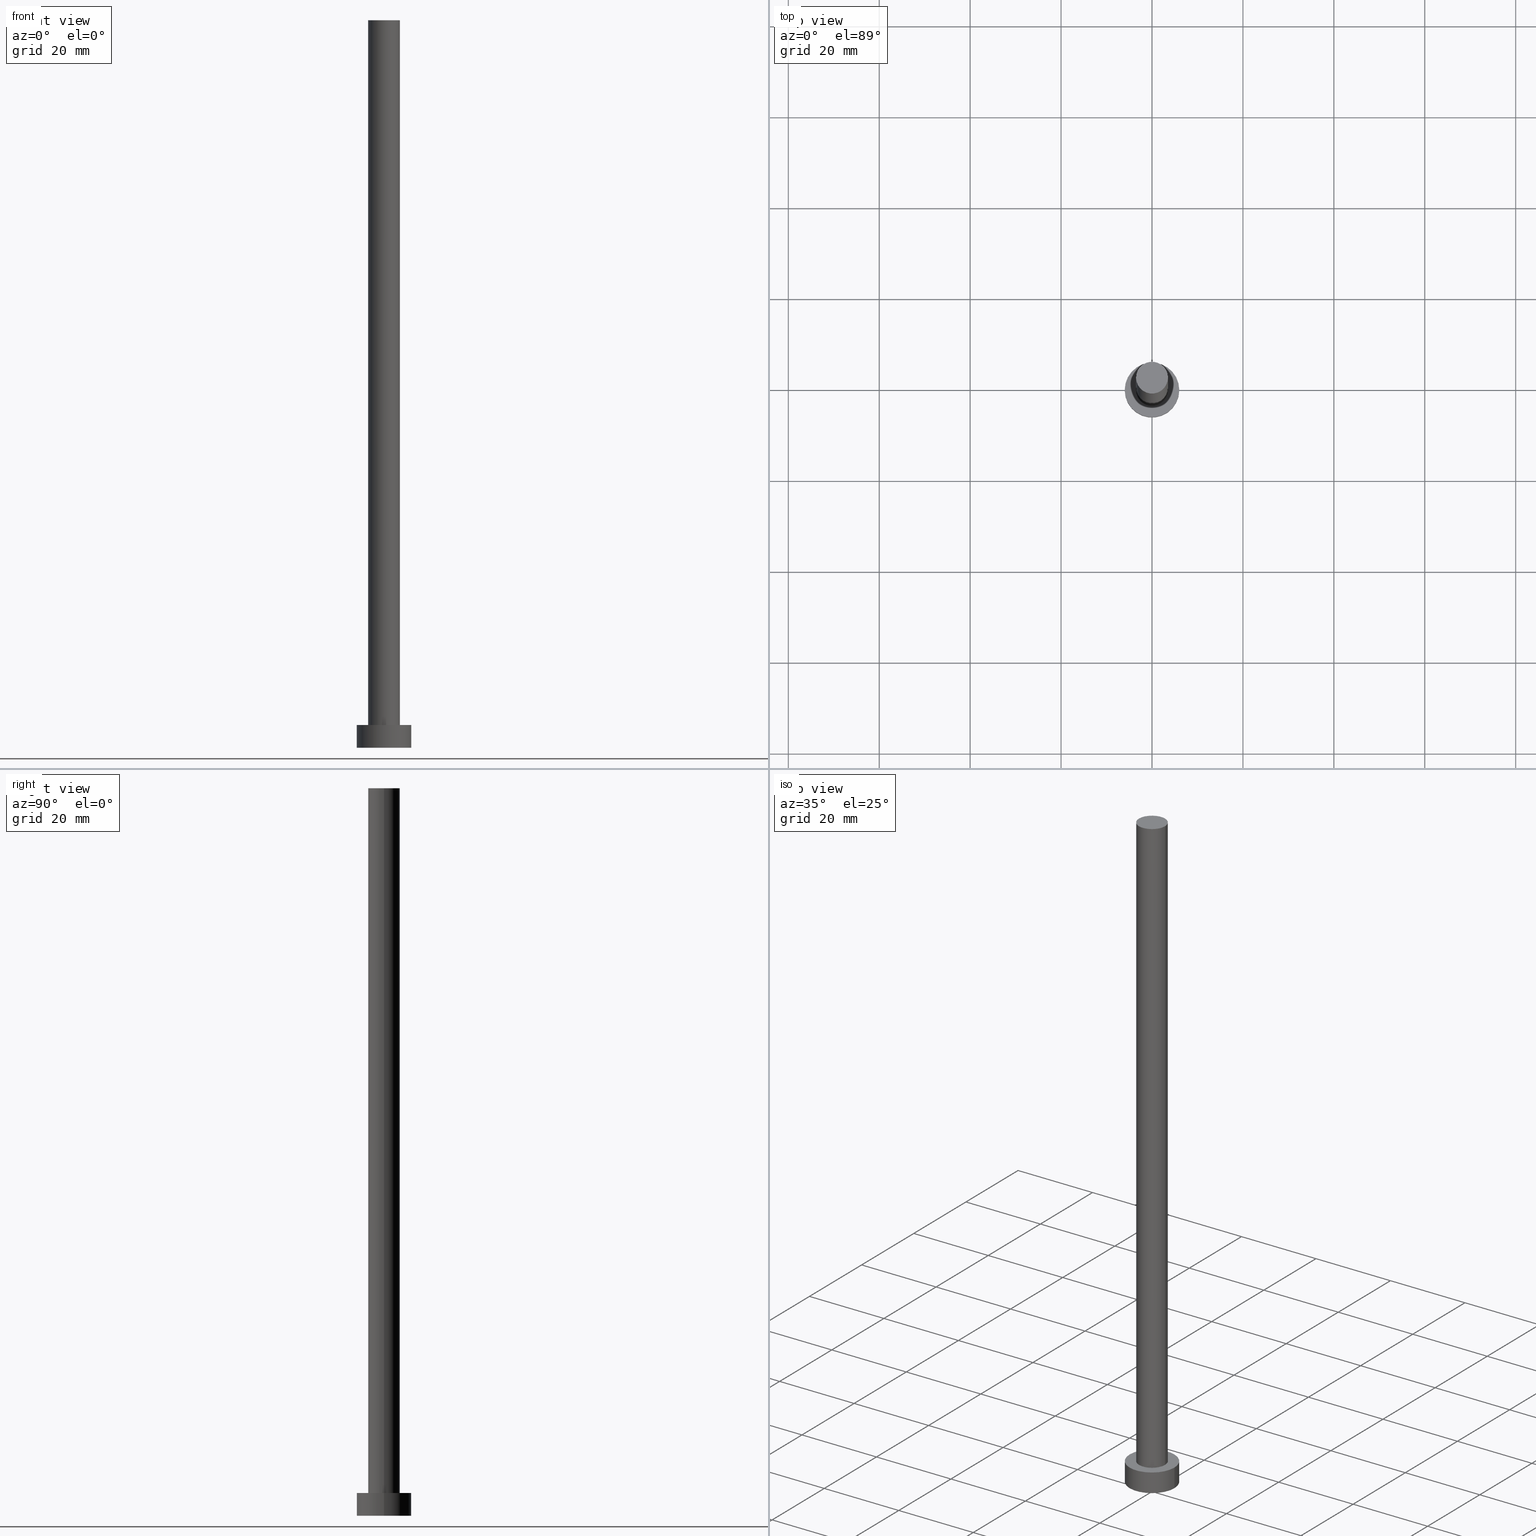
[diagram: canonical four-view strip — front | top / right | iso, engineering-drawing reading convention]
A machine part, canonical four-view strip (front | top / right | iso — engineering-drawing reading convention). The complete STEP part file that produces these views, byte-faithful:
ISO-10303-21;
HEADER;
FILE_DESCRIPTION (( 'STEP AP203' ),
    '1' );
FILE_NAME ('7220.STEP',
    '2023-02-13T11:46:51',
    ( '' ),
    ( '' ),
    'SwSTEP 2.0',
    'SolidWorks 2019',
    '' );
FILE_SCHEMA (( 'CONFIG_CONTROL_DESIGN' ));
ENDSEC;

DATA;
#1 = FACE_OUTER_BOUND ( 'NONE', #35, .T. ) ;
#2 = CARTESIAN_POINT ( 'NONE',  ( 0.000000000000000000, 0.000000000000000000, 5.000000000000000000 ) ) ;
#3 = EDGE_CURVE ( 'NONE', #219, #74, #107, .T. ) ;
#4 = LOCAL_TIME ( 12, 46, 51.00000000000000000, #26 ) ;
#5 = DATE_TIME_ROLE ( 'creation_date' ) ;
#6 = ORIENTED_EDGE ( 'NONE', *, *, #116, .F. ) ;
#7 = DATE_AND_TIME ( #112, #138 ) ;
#8 = DIRECTION ( 'NONE',  ( -1.000000000000000000, 0.000000000000000000, 0.000000000000000000 ) ) ;
#9 = VERTEX_POINT ( 'NONE', #247 ) ;
#10 = VECTOR ( 'NONE', #252, 1000.000000000000000 ) ;
#11 = ORIENTED_EDGE ( 'NONE', *, *, #98, .F. ) ;
#12 = ADVANCED_FACE ( 'NONE', ( #28 ), #75, .T. ) ;
#13 = CARTESIAN_POINT ( 'NONE',  ( -3.500000000000000000, 0.000000000000000000, 160.0000000000000000 ) ) ;
#14 = CC_DESIGN_APPROVAL ( #94, ( #190 ) ) ;
#15 = CC_DESIGN_PERSON_AND_ORGANIZATION_ASSIGNMENT ( #234, #241, ( #19 ) ) ;
#16 = DIRECTION ( 'NONE',  ( 0.000000000000000000, 0.000000000000000000, 1.000000000000000000 ) ) ;
#17 = AXIS2_PLACEMENT_3D ( 'NONE', #87, #164, #197 ) ;
#18 = AXIS2_PLACEMENT_3D ( 'NONE', #34, #97, #207 ) ;
#19 = SECURITY_CLASSIFICATION ( '', '', #202 ) ;
#20 = DIRECTION ( 'NONE',  ( 1.000000000000000000, 0.000000000000000000, -0.000000000000000000 ) ) ;
#21 = DIRECTION ( 'NONE',  ( 0.000000000000000000, 0.000000000000000000, 1.000000000000000000 ) ) ;
#22 = AXIS2_PLACEMENT_3D ( 'NONE', #2, #154, #225 ) ;
#23 = APPROVAL_PERSON_ORGANIZATION ( #216, #94, #115 ) ;
#24 = APPROVAL_DATE_TIME ( #165, #94 ) ;
#25 = DIRECTION ( 'NONE',  ( 1.000000000000000000, 0.000000000000000000, 0.000000000000000000 ) ) ;
#26 = COORDINATED_UNIVERSAL_TIME_OFFSET ( 1, 0, .AHEAD. ) ;
#27 = LOCAL_TIME ( 12, 46, 51.00000000000000000, #55 ) ;
#28 = FACE_OUTER_BOUND ( 'NONE', #92, .T. ) ;
#29 = PRODUCT_RELATED_PRODUCT_CATEGORY ( 'detail', '', ( #183 ) ) ;
#30 = PERSON_AND_ORGANIZATION ( #208, #47 ) ;
#31 = ORIENTED_EDGE ( 'NONE', *, *, #49, .F. ) ;
#32 = EDGE_LOOP ( 'NONE', ( #11, #69, #136, #131 ) ) ;
#33 = CLOSED_SHELL ( 'NONE', ( #215, #158, #12, #177, #253, #121, #84 ) ) ;
#34 = CARTESIAN_POINT ( 'NONE',  ( 0.000000000000000000, 0.000000000000000000, 5.000000000000000000 ) ) ;
#35 = EDGE_LOOP ( 'NONE', ( #111, #50, #67, #54 ) ) ;
#36 = PLANE ( 'NONE',  #255 ) ;
#37 = CARTESIAN_POINT ( 'NONE',  ( 0.000000000000000000, 0.000000000000000000, 5.000000000000000000 ) ) ;
#38 = CIRCLE ( 'NONE', #17, 6.000000000000000888 ) ;
#39 = LOCAL_TIME ( 12, 46, 51.00000000000000000, #179 ) ;
#40 =( LENGTH_UNIT ( ) NAMED_UNIT ( * ) SI_UNIT ( .MILLI., .METRE. ) );
#41 = APPLICATION_CONTEXT ( 'configuration controlled 3d designs of mechanical parts and assemblies' ) ;
#42 = CARTESIAN_POINT ( 'NONE',  ( 0.000000000000000000, 0.000000000000000000, 160.0000000000000000 ) ) ;
#43 = APPROVAL_PERSON_ORGANIZATION ( #198, #106, #130 ) ;
#44 = CARTESIAN_POINT ( 'NONE',  ( -3.500000000000000000, 0.000000000000000000, 160.0000000000000000 ) ) ;
#45 = EDGE_CURVE ( 'NONE', #137, #204, #38, .T. ) ;
#46 = COORDINATED_UNIVERSAL_TIME_OFFSET ( 1, 0, .AHEAD. ) ;
#47 = ORGANIZATION ( 'NEUR�EN�', 'NEUR�EN�', '' ) ;
#48 = CARTESIAN_POINT ( 'NONE',  ( 0.000000000000000000, 0.000000000000000000, 0.000000000000000000 ) ) ;
#49 = EDGE_CURVE ( 'NONE', #9, #148, #99, .T. ) ;
#50 = ORIENTED_EDGE ( 'NONE', *, *, #101, .T. ) ;
#51 = CIRCLE ( 'NONE', #83, 6.000000000000000888 ) ;
#52 = PERSON_AND_ORGANIZATION ( #208, #47 ) ;
#53 = CARTESIAN_POINT ( 'NONE',  ( 0.000000000000000000, 0.000000000000000000, 160.0000000000000000 ) ) ;
#54 = ORIENTED_EDGE ( 'NONE', *, *, #211, .F. ) ;
#55 = COORDINATED_UNIVERSAL_TIME_OFFSET ( 1, 0, .AHEAD. ) ;
#56 = APPROVAL_DATE_TIME ( #245, #76 ) ;
#57 = EDGE_LOOP ( 'NONE', ( #169, #114 ) ) ;
#58 = DIRECTION ( 'NONE',  ( 1.000000000000000000, 0.000000000000000000, 0.000000000000000000 ) ) ;
#59 = PLANE ( 'NONE',  #142 ) ;
#60 = CIRCLE ( 'NONE', #236, 3.500000000000000000 ) ;
#61 = CARTESIAN_POINT ( 'NONE',  ( 0.000000000000000000, 0.000000000000000000, 5.000000000000000000 ) ) ;
#62 = DIRECTION ( 'NONE',  ( 0.000000000000000000, 0.000000000000000000, 1.000000000000000000 ) ) ;
#63 = LINE ( 'NONE', #157, #192 ) ;
#64 = ADVANCED_BREP_SHAPE_REPRESENTATION ( '7220', ( #168, #144 ), #244 ) ;
#65 = CC_DESIGN_PERSON_AND_ORGANIZATION_ASSIGNMENT ( #205, #238, ( #190 ) ) ;
#66 = APPROVAL_STATUS ( 'not_yet_approved' ) ;
#67 = ORIENTED_EDGE ( 'NONE', *, *, #116, .T. ) ;
#68 = COORDINATED_UNIVERSAL_TIME_OFFSET ( 1, 0, .AHEAD. ) ;
#69 = ORIENTED_EDGE ( 'NONE', *, *, #3, .F. ) ;
#70 = FACE_OUTER_BOUND ( 'NONE', #32, .T. ) ;
#71 = DATE_TIME_ROLE ( 'classification_date' ) ;
#72 = CARTESIAN_POINT ( 'NONE',  ( 3.500000000000000000, 4.286263797015736595E-16, 5.000000000000000000 ) ) ;
#73 = AXIS2_PLACEMENT_3D ( 'NONE', #86, #113, #8 ) ;
#74 = VERTEX_POINT ( 'NONE', #180 ) ;
#75 = CYLINDRICAL_SURFACE ( 'NONE', #22, 6.000000000000000888 ) ;
#76 = APPROVAL ( #126, 'NEUR�EN�' ) ;
#77 = DIRECTION ( 'NONE',  ( 0.000000000000000000, 0.000000000000000000, 1.000000000000000000 ) ) ;
#78 = DIRECTION ( 'NONE',  ( 0.000000000000000000, 0.000000000000000000, 1.000000000000000000 ) ) ;
#79 = DIRECTION ( 'NONE',  ( 1.000000000000000000, 0.000000000000000000, -0.000000000000000000 ) ) ;
#80 = APPLICATION_PROTOCOL_DEFINITION ( 'international standard', 'config_control_design', 1994, #232 ) ;
#81 = CARTESIAN_POINT ( 'NONE',  ( 3.500000000000000000, 4.286263797015736595E-16, 160.0000000000000000 ) ) ;
#82 = DIRECTION ( 'NONE',  ( -0.000000000000000000, -0.000000000000000000, -1.000000000000000000 ) ) ;
#83 = AXIS2_PLACEMENT_3D ( 'NONE', #203, #246, #127 ) ;
#84 = ADVANCED_FACE ( 'NONE', ( #90 ), #59, .T. ) ;
#85 = PERSON_AND_ORGANIZATION_ROLE ( 'design_owner' ) ;
#86 = CARTESIAN_POINT ( 'NONE',  ( 0.000000000000000000, 0.000000000000000000, 5.000000000000000000 ) ) ;
#87 = CARTESIAN_POINT ( 'NONE',  ( 0.000000000000000000, 0.000000000000000000, 5.000000000000000000 ) ) ;
#88 = CC_DESIGN_APPROVAL ( #106, ( #125 ) ) ;
#89 = CARTESIAN_POINT ( 'NONE',  ( 6.000000000000000888, 7.347880794884120722E-16, 0.000000000000000000 ) ) ;
#90 = FACE_OUTER_BOUND ( 'NONE', #120, .T. ) ;
#91 = EDGE_CURVE ( 'NONE', #219, #243, #104, .T. ) ;
#92 = EDGE_LOOP ( 'NONE', ( #149, #134, #224, #95 ) ) ;
#93 = DIRECTION ( 'NONE',  ( -1.000000000000000000, 0.000000000000000000, 0.000000000000000000 ) ) ;
#94 = APPROVAL ( #66, 'NEUR�EN�' ) ;
#95 = ORIENTED_EDGE ( 'NONE', *, *, #49, .T. ) ;
#96 = CARTESIAN_POINT ( 'NONE',  ( -3.500000000000000000, 0.000000000000000000, 5.000000000000000000 ) ) ;
#97 = DIRECTION ( 'NONE',  ( 0.000000000000000000, 0.000000000000000000, 1.000000000000000000 ) ) ;
#98 = EDGE_CURVE ( 'NONE', #74, #170, #161, .T. ) ;
#99 = CIRCLE ( 'NONE', #163, 6.000000000000000888 ) ;
#100 = PLANE ( 'NONE',  #18 ) ;
#101 = EDGE_CURVE ( 'NONE', #137, #148, #105, .T. ) ;
#102 = AXIS2_PLACEMENT_3D ( 'NONE', #37, #78, #210 ) ;
#103 = MECHANICAL_CONTEXT ( 'NONE', #232, 'mechanical' ) ;
#104 = LINE ( 'NONE', #44, #10 ) ;
#105 = LINE ( 'NONE', #254, #174 ) ;
#106 = APPROVAL ( #233, 'NEUR�EN�' ) ;
#107 = CIRCLE ( 'NONE', #160, 3.500000000000000000 ) ;
#108 = AXIS2_PLACEMENT_3D ( 'NONE', #118, #188, #250 ) ;
#109 = APPROVAL_ROLE ( '' ) ;
#110 = CALENDAR_DATE ( 2023, 13, 2 ) ;
#111 = ORIENTED_EDGE ( 'NONE', *, *, #45, .F. ) ;
#112 = CALENDAR_DATE ( 2023, 13, 2 ) ;
#113 = DIRECTION ( 'NONE',  ( -0.000000000000000000, -0.000000000000000000, -1.000000000000000000 ) ) ;
#114 = ORIENTED_EDGE ( 'NONE', *, *, #45, .T. ) ;
#115 = APPROVAL_ROLE ( '' ) ;
#116 = EDGE_CURVE ( 'NONE', #148, #9, #249, .T. ) ;
#117 = EDGE_LOOP ( 'NONE', ( #186, #184 ) ) ;
#118 = CARTESIAN_POINT ( 'NONE',  ( 0.000000000000000000, 0.000000000000000000, 160.0000000000000000 ) ) ;
#119 = CIRCLE ( 'NONE', #102, 3.500000000000000000 ) ;
#120 = EDGE_LOOP ( 'NONE', ( #240, #153 ) ) ;
#121 = ADVANCED_FACE ( 'NONE', ( #70 ), #220, .T. ) ;
#122 = CC_DESIGN_DATE_AND_TIME_ASSIGNMENT ( #182, #5, ( #190 ) ) ;
#123 = DIRECTION ( 'NONE',  ( 0.000000000000000000, 0.000000000000000000, 1.000000000000000000 ) ) ;
#124 = CC_DESIGN_DATE_AND_TIME_ASSIGNMENT ( #7, #71, ( #19 ) ) ;
#125 = PRODUCT_DEFINITION_FORMATION_WITH_SPECIFIED_SOURCE ( 'LIBOVOLN�', '', #183, .NOT_KNOWN. ) ;
#126 = APPROVAL_STATUS ( 'not_yet_approved' ) ;
#127 = DIRECTION ( 'NONE',  ( 1.000000000000000000, 0.000000000000000000, 0.000000000000000000 ) ) ;
#128 = CARTESIAN_POINT ( 'NONE',  ( 6.000000000000000888, 7.347880794884120722E-16, 5.000000000000000000 ) ) ;
#129 = DIRECTION ( 'NONE',  ( 0.000000000000000000, 0.000000000000000000, 1.000000000000000000 ) ) ;
#130 = APPROVAL_ROLE ( '' ) ;
#131 = ORIENTED_EDGE ( 'NONE', *, *, #193, .T. ) ;
#132 = PERSON_AND_ORGANIZATION ( #208, #47 ) ;
#133 = DIRECTION ( 'NONE',  ( -0.000000000000000000, -0.000000000000000000, -1.000000000000000000 ) ) ;
#134 = ORIENTED_EDGE ( 'NONE', *, *, #145, .F. ) ;
#135 = PERSON_AND_ORGANIZATION_ROLE ( 'design_supplier' ) ;
#136 = ORIENTED_EDGE ( 'NONE', *, *, #91, .T. ) ;
#137 = VERTEX_POINT ( 'NONE', #128 ) ;
#138 = LOCAL_TIME ( 12, 46, 51.00000000000000000, #46 ) ;
#139 = DIRECTION ( 'NONE',  ( -0.000000000000000000, -0.000000000000000000, -1.000000000000000000 ) ) ;
#140 = FACE_OUTER_BOUND ( 'NONE', #235, .T. ) ;
#141 = CC_DESIGN_PERSON_AND_ORGANIZATION_ASSIGNMENT ( #132, #135, ( #125 ) ) ;
#142 = AXIS2_PLACEMENT_3D ( 'NONE', #42, #123, #20 ) ;
#143 =( NAMED_UNIT ( * ) PLANE_ANGLE_UNIT ( ) SI_UNIT ( $, .RADIAN. ) );
#144 = AXIS2_PLACEMENT_3D ( 'NONE', #146, #212, #251 ) ;
#145 = EDGE_CURVE ( 'NONE', #204, #137, #51, .T. ) ;
#146 = CARTESIAN_POINT ( 'NONE',  ( 0.000000000000000000, 0.000000000000000000, 0.000000000000000000 ) ) ;
#147 = PRODUCT_DEFINITION_SHAPE ( 'NONE', 'NONE',  #190 ) ;
#148 = VERTEX_POINT ( 'NONE', #89 ) ;
#149 = ORIENTED_EDGE ( 'NONE', *, *, #101, .F. ) ;
#150 = APPLICATION_PROTOCOL_DEFINITION ( 'international standard', 'config_control_design', 1994, #41 ) ;
#151 = ORIENTED_EDGE ( 'NONE', *, *, #98, .T. ) ;
#152 = DATE_AND_TIME ( #110, #4 ) ;
#153 = ORIENTED_EDGE ( 'NONE', *, *, #242, .T. ) ;
#154 = DIRECTION ( 'NONE',  ( -0.000000000000000000, -0.000000000000000000, -1.000000000000000000 ) ) ;
#155 = CC_DESIGN_PERSON_AND_ORGANIZATION_ASSIGNMENT ( #52, #223, ( #125 ) ) ;
#156 = FACE_BOUND ( 'NONE', #117, .T. ) ;
#157 = CARTESIAN_POINT ( 'NONE',  ( -6.000000000000000888, 0.000000000000000000, 5.000000000000000000 ) ) ;
#158 = ADVANCED_FACE ( 'NONE', ( #1 ), #196, .T. ) ;
#159 = AXIS2_PLACEMENT_3D ( 'NONE', #227, #62, #58 ) ;
#160 = AXIS2_PLACEMENT_3D ( 'NONE', #171, #200, #217 ) ;
#161 = LINE ( 'NONE', #81, #213 ) ;
#162 = PERSON_AND_ORGANIZATION ( #208, #47 ) ;
#163 = AXIS2_PLACEMENT_3D ( 'NONE', #48, #129, #25 ) ;
#164 = DIRECTION ( 'NONE',  ( 0.000000000000000000, 0.000000000000000000, 1.000000000000000000 ) ) ;
#165 = DATE_AND_TIME ( #185, #27 ) ;
#166 = EDGE_LOOP ( 'NONE', ( #31, #6 ) ) ;
#167 = CC_DESIGN_PERSON_AND_ORGANIZATION_ASSIGNMENT ( #30, #85, ( #183 ) ) ;
#168 = MANIFOLD_SOLID_BREP ( 'P�idat vysunut�m3', #33 ) ;
#169 = ORIENTED_EDGE ( 'NONE', *, *, #145, .T. ) ;
#170 = VERTEX_POINT ( 'NONE', #72 ) ;
#171 = CARTESIAN_POINT ( 'NONE',  ( 0.000000000000000000, 0.000000000000000000, 160.0000000000000000 ) ) ;
#172 = CARTESIAN_POINT ( 'NONE',  ( -6.000000000000000888, 0.000000000000000000, 5.000000000000000000 ) ) ;
#173 = FACE_OUTER_BOUND ( 'NONE', #166, .T. ) ;
#174 = VECTOR ( 'NONE', #82, 1000.000000000000000 ) ;
#175 = CALENDAR_DATE ( 2023, 13, 2 ) ;
#176 = CARTESIAN_POINT ( 'NONE',  ( 0.000000000000000000, 0.000000000000000000, 0.000000000000000000 ) ) ;
#177 = ADVANCED_FACE ( 'NONE', ( #156, #191 ), #100, .T. ) ;
#178 = DIRECTION ( 'NONE',  ( 1.000000000000000000, 0.000000000000000000, 0.000000000000000000 ) ) ;
#179 = COORDINATED_UNIVERSAL_TIME_OFFSET ( 1, 0, .AHEAD. ) ;
#180 = CARTESIAN_POINT ( 'NONE',  ( 3.500000000000000000, 4.286263797015736595E-16, 160.0000000000000000 ) ) ;
#181 = APPROVAL_DATE_TIME ( #152, #106 ) ;
#182 = DATE_AND_TIME ( #218, #214 ) ;
#183 = PRODUCT ( '7220', '7220', '', ( #103 ) ) ;
#184 = ORIENTED_EDGE ( 'NONE', *, *, #237, .F. ) ;
#185 = CALENDAR_DATE ( 2023, 13, 2 ) ;
#186 = ORIENTED_EDGE ( 'NONE', *, *, #193, .F. ) ;
#187 = SHAPE_DEFINITION_REPRESENTATION ( #147, #64 ) ;
#188 = DIRECTION ( 'NONE',  ( -0.000000000000000000, -0.000000000000000000, -1.000000000000000000 ) ) ;
#189 = AXIS2_PLACEMENT_3D ( 'NONE', #53, #133, #93 ) ;
#190 = PRODUCT_DEFINITION ( 'NEZN�M�', '', #125, #226 ) ;
#191 = FACE_OUTER_BOUND ( 'NONE', #57, .T. ) ;
#192 = VECTOR ( 'NONE', #139, 1000.000000000000000 ) ;
#193 = EDGE_CURVE ( 'NONE', #243, #170, #60, .T. ) ;
#194 = CARTESIAN_POINT ( 'NONE',  ( 0.000000000000000000, 0.000000000000000000, 0.000000000000000000 ) ) ;
#195 = CC_DESIGN_SECURITY_CLASSIFICATION ( #19, ( #125 ) ) ;
#196 = CYLINDRICAL_SURFACE ( 'NONE', #73, 6.000000000000000888 ) ;
#197 = DIRECTION ( 'NONE',  ( 1.000000000000000000, 0.000000000000000000, 0.000000000000000000 ) ) ;
#198 = PERSON_AND_ORGANIZATION ( #208, #47 ) ;
#199 = AXIS2_PLACEMENT_3D ( 'NONE', #194, #21, #178 ) ;
#200 = DIRECTION ( 'NONE',  ( 0.000000000000000000, 0.000000000000000000, 1.000000000000000000 ) ) ;
#201 = APPROVAL_PERSON_ORGANIZATION ( #162, #76, #109 ) ;
#202 = SECURITY_CLASSIFICATION_LEVEL ( 'unclassified' ) ;
#203 = CARTESIAN_POINT ( 'NONE',  ( 0.000000000000000000, 0.000000000000000000, 5.000000000000000000 ) ) ;
#204 = VERTEX_POINT ( 'NONE', #172 ) ;
#205 = PERSON_AND_ORGANIZATION ( #208, #47 ) ;
#206 = ORIENTED_EDGE ( 'NONE', *, *, #242, .F. ) ;
#207 = DIRECTION ( 'NONE',  ( 1.000000000000000000, 0.000000000000000000, -0.000000000000000000 ) ) ;
#208 = PERSON ( 'NEUR�EN�', 'NEUR�EN�', 'NEUR�EN�', ('NEUR�EN�'), ('NEUR�EN�'), ('NEUR�EN�') ) ;
#209 = CYLINDRICAL_SURFACE ( 'NONE', #108, 3.500000000000000000 ) ;
#210 = DIRECTION ( 'NONE',  ( 1.000000000000000000, 0.000000000000000000, 0.000000000000000000 ) ) ;
#211 = EDGE_CURVE ( 'NONE', #204, #9, #63, .T. ) ;
#212 = DIRECTION ( 'NONE',  ( 0.000000000000000000, 0.000000000000000000, 1.000000000000000000 ) ) ;
#213 = VECTOR ( 'NONE', #231, 1000.000000000000000 ) ;
#214 = LOCAL_TIME ( 12, 46, 51.00000000000000000, #68 ) ;
#215 = ADVANCED_FACE ( 'NONE', ( #140 ), #209, .T. ) ;
#216 = PERSON_AND_ORGANIZATION ( #208, #47 ) ;
#217 = DIRECTION ( 'NONE',  ( 1.000000000000000000, 0.000000000000000000, 0.000000000000000000 ) ) ;
#218 = CALENDAR_DATE ( 2023, 13, 2 ) ;
#219 = VERTEX_POINT ( 'NONE', #13 ) ;
#220 = CYLINDRICAL_SURFACE ( 'NONE', #189, 3.500000000000000000 ) ;
#221 = ORIENTED_EDGE ( 'NONE', *, *, #91, .F. ) ;
#222 = CIRCLE ( 'NONE', #159, 3.500000000000000000 ) ;
#223 = PERSON_AND_ORGANIZATION_ROLE ( 'creator' ) ;
#224 = ORIENTED_EDGE ( 'NONE', *, *, #211, .T. ) ;
#225 = DIRECTION ( 'NONE',  ( -1.000000000000000000, 0.000000000000000000, 0.000000000000000000 ) ) ;
#226 = DESIGN_CONTEXT ( 'detailed design', #41, 'design' ) ;
#227 = CARTESIAN_POINT ( 'NONE',  ( 0.000000000000000000, 0.000000000000000000, 160.0000000000000000 ) ) ;
#228 = CC_DESIGN_APPROVAL ( #76, ( #19 ) ) ;
#229 = DIRECTION ( 'NONE',  ( 1.000000000000000000, 0.000000000000000000, 0.000000000000000000 ) ) ;
#230 = UNCERTAINTY_MEASURE_WITH_UNIT (LENGTH_MEASURE( 1.000000000000000082E-05 ), #40, 'distance_accuracy_value', 'NONE');
#231 = DIRECTION ( 'NONE',  ( -0.000000000000000000, -0.000000000000000000, -1.000000000000000000 ) ) ;
#232 = APPLICATION_CONTEXT ( 'configuration controlled 3d designs of mechanical parts and assemblies' ) ;
#233 = APPROVAL_STATUS ( 'not_yet_approved' ) ;
#234 = PERSON_AND_ORGANIZATION ( #208, #47 ) ;
#235 = EDGE_LOOP ( 'NONE', ( #206, #151, #239, #221 ) ) ;
#236 = AXIS2_PLACEMENT_3D ( 'NONE', #61, #77, #229 ) ;
#237 = EDGE_CURVE ( 'NONE', #170, #243, #119, .T. ) ;
#238 = PERSON_AND_ORGANIZATION_ROLE ( 'creator' ) ;
#239 = ORIENTED_EDGE ( 'NONE', *, *, #237, .T. ) ;
#240 = ORIENTED_EDGE ( 'NONE', *, *, #3, .T. ) ;
#241 = PERSON_AND_ORGANIZATION_ROLE ( 'classification_officer' ) ;
#242 = EDGE_CURVE ( 'NONE', #74, #219, #222, .T. ) ;
#243 = VERTEX_POINT ( 'NONE', #96 ) ;
#244 =( GEOMETRIC_REPRESENTATION_CONTEXT ( 3 ) GLOBAL_UNCERTAINTY_ASSIGNED_CONTEXT ( ( #230 ) ) GLOBAL_UNIT_ASSIGNED_CONTEXT ( ( #40, #143, #248 ) ) REPRESENTATION_CONTEXT ( 'NONE', 'WORKASPACE' ) );
#245 = DATE_AND_TIME ( #175, #39 ) ;
#246 = DIRECTION ( 'NONE',  ( 0.000000000000000000, 0.000000000000000000, 1.000000000000000000 ) ) ;
#247 = CARTESIAN_POINT ( 'NONE',  ( -6.000000000000000888, 0.000000000000000000, 0.000000000000000000 ) ) ;
#248 =( NAMED_UNIT ( * ) SI_UNIT ( $, .STERADIAN. ) SOLID_ANGLE_UNIT ( ) );
#249 = CIRCLE ( 'NONE', #199, 6.000000000000000888 ) ;
#250 = DIRECTION ( 'NONE',  ( -1.000000000000000000, 0.000000000000000000, 0.000000000000000000 ) ) ;
#251 = DIRECTION ( 'NONE',  ( 1.000000000000000000, 0.000000000000000000, 0.000000000000000000 ) ) ;
#252 = DIRECTION ( 'NONE',  ( -0.000000000000000000, -0.000000000000000000, -1.000000000000000000 ) ) ;
#253 = ADVANCED_FACE ( 'NONE', ( #173 ), #36, .F. ) ;
#254 = CARTESIAN_POINT ( 'NONE',  ( 6.000000000000000888, 7.347880794884120722E-16, 5.000000000000000000 ) ) ;
#255 = AXIS2_PLACEMENT_3D ( 'NONE', #176, #16, #79 ) ;
ENDSEC;
END-ISO-10303-21;
